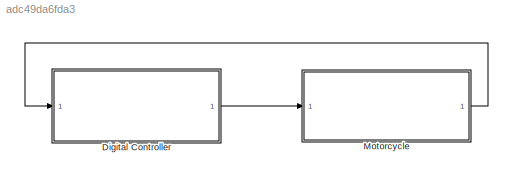
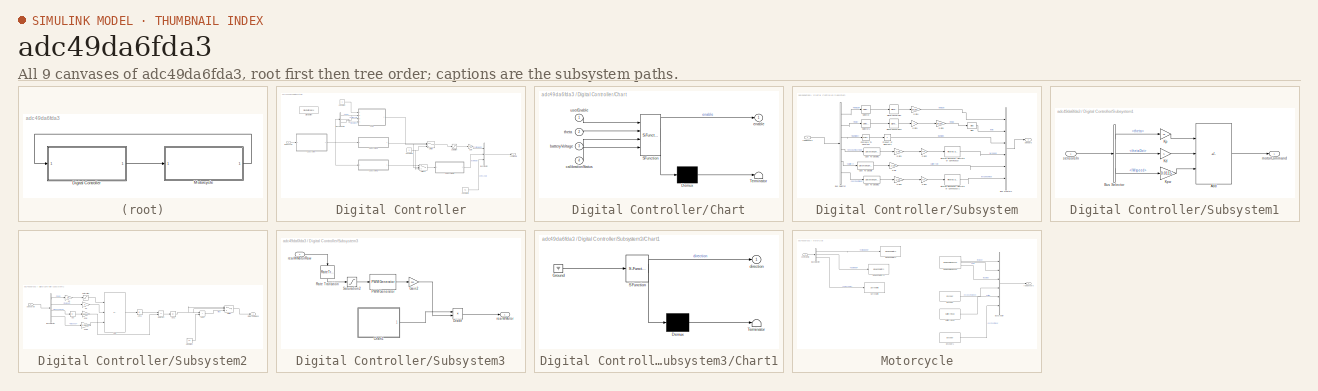
[diagram: thumbnail index - all 9 canvases of the model, root first then tree order]
MODEL slx_adc49da6fda3
KIND model
CONFIG AbsTol = auto
CONFIG EnableMultiTasking = on
CONFIG FixedStep = auto
CONFIG MaxStep = auto
CONFIG MinStep = auto
CONFIG RelTol = 1e-3
CONFIG SampleTimeConstraint = Unconstrained
CONFIG SolverName = FixedStepAuto
CONFIG StartTime = 0.0
CONFIG StopTime = inf
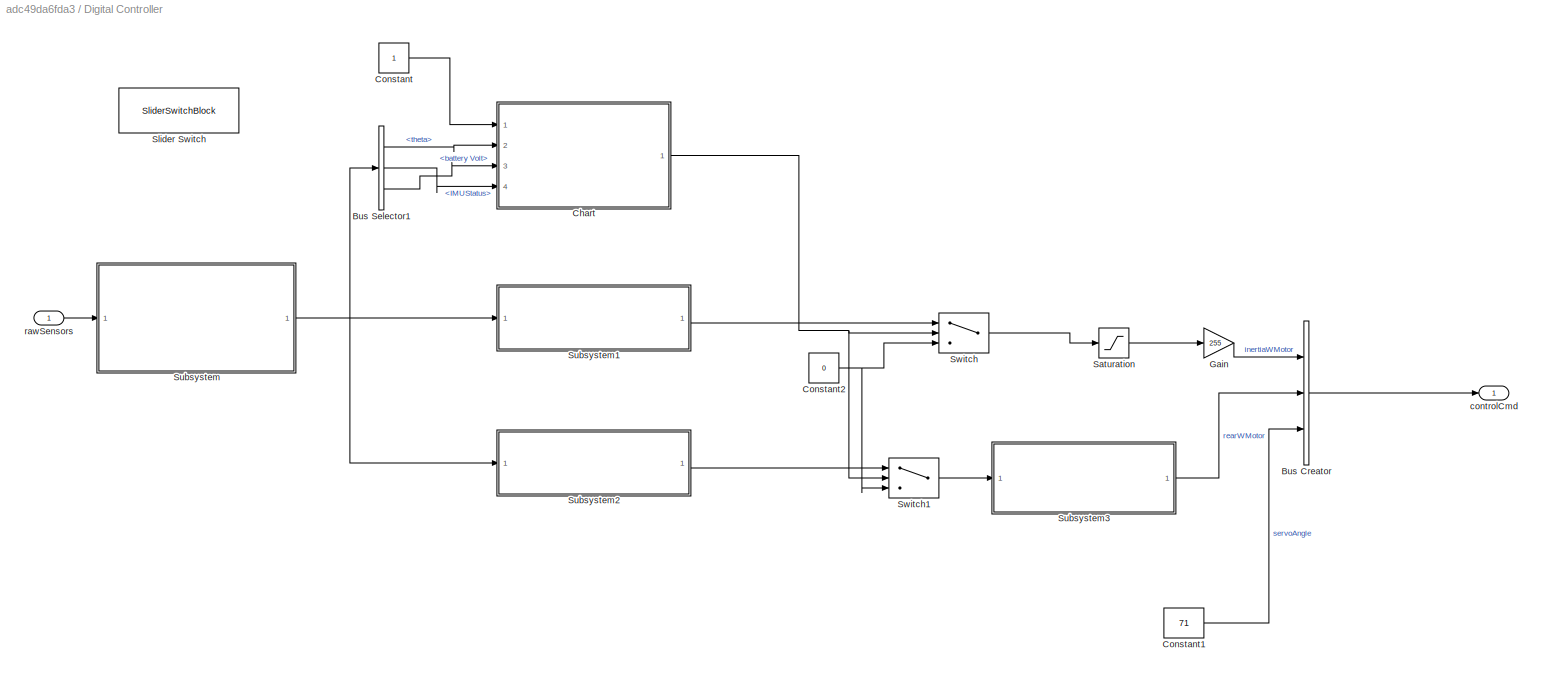
BLOCK [SubSystem] Digital Controller
  Ports = [1, 1]
  RequestExecContextInheritance = off
BLOCK [BusCreator] Digital Controller/Bus Creator
  DisplayOption = bar
  InheritFromInputs = on
  Inputs = 3
  Ports = [3, 1]
BLOCK [BusSelector] Digital Controller/Bus Selector1
  OutputSignals = theta,IMUStatus,battery Volt
  Ports = [1, 3]
BLOCK [SubSystem] Digital Controller/Chart
  ErrorFcn = Stateflow.Translate.translate
  PermitHierarchicalResolution = ExplicitOnly
  Ports = [4, 1]
  RequestExecContextInheritance = off
  SFBlockType = Chart
  TreatAsAtomicUnit = on
BLOCK [Demux] Digital Controller/Chart/ Demux 
  Outputs = 1
  Ports = [1, 1]
BLOCK [S-Function] Digital Controller/Chart/ SFunction 
  EnableBusSupport = on
  FunctionName = sf_sfun
  PortCounts = [4 2]
  Ports = [4, 2]
  SFcnIsStateOwnerBlock = off
  SFunctionDeploymentMode = off
  Tag = Stateflow S-Function 3
BLOCK [Terminator] Digital Controller/Chart/ Terminator 
BLOCK [Inport] Digital Controller/Chart/batteryVoltage
  Port = 3
BLOCK [Inport] Digital Controller/Chart/calibrationStatus
  Port = 4
BLOCK [Outport] Digital Controller/Chart/enable
BLOCK [Inport] Digital Controller/Chart/theta
  Port = 2
BLOCK [Inport] Digital Controller/Chart/userEnable
BLOCK [Constant] Digital Controller/Constant
BLOCK [Constant] Digital Controller/Constant1
  SampleTime = 0.01
  Value = 71
BLOCK [Constant] Digital Controller/Constant2
  SampleTime = 0.01
  Value = 0
BLOCK [Gain] Digital Controller/Gain
  Gain = 255
BLOCK [Saturate] Digital Controller/Saturation
  LowerLimit = -1
  UpperLimit = 1
BLOCK [SliderSwitchBlock] Digital Controller/Slider Switch
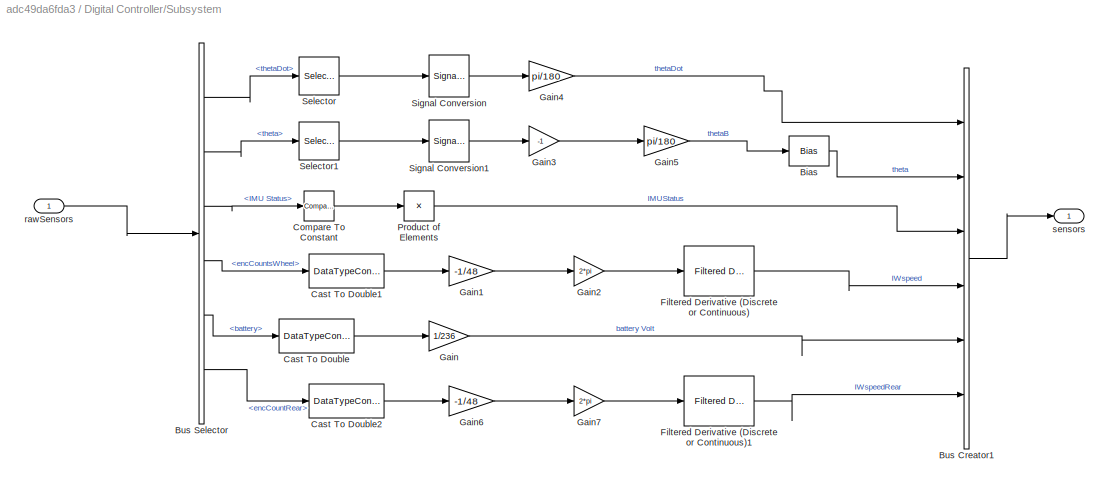
BLOCK [SubSystem] Digital Controller/Subsystem
  Ports = [1, 1]
  RequestExecContextInheritance = off
BLOCK [Bias] Digital Controller/Subsystem/Bias
  SaturateOnIntegerOverflow = off
BLOCK [BusCreator] Digital Controller/Subsystem/Bus Creator1
  DisplayOption = bar
  InheritFromInputs = on
  Inputs = 6
  Ports = [6, 1]
BLOCK [BusSelector] Digital Controller/Subsystem/Bus Selector
  OutputSignals = thetaDot,theta,IMU Status,encCountsWheel,battery,encCountRear
  Ports = [1, 6]
BLOCK [DataTypeConversion] Digital Controller/Subsystem/Cast To Double
  OutDataTypeStr = double
  RndMeth = Floor
  SaturateOnIntegerOverflow = off
BLOCK [DataTypeConversion] Digital Controller/Subsystem/Cast To Double1
  OutDataTypeStr = double
  RndMeth = Floor
  SaturateOnIntegerOverflow = off
BLOCK [DataTypeConversion] Digital Controller/Subsystem/Cast To Double2
  OutDataTypeStr = double
  RndMeth = Floor
  SaturateOnIntegerOverflow = off
BLOCK [Reference] Digital Controller/Subsystem/Compare To Constant  REF=simulink/Logic and Bit
Operations/Compare
To Constant
  Ports = [1, 1]
  SourceBlock = simulink/Logic and Bit\nOperations/Compare\nTo Constant
  SourceProductBaseCode = SL
  SourceType = Compare To Constant
BLOCK [Reference] Digital Controller/Subsystem/Filtered Derivative (Discrete or Continuous)  REF=eeGeneralControl/Filtered Derivative
(Discrete or Continuous)
  Ports = [1, 1]
  SourceBlock = eeGeneralControl/Filtered Derivative\n(Discrete or Continuous)
  SourceProductBaseCode = PS
  SourceType = Filtered Derivative (Discrete or Continuous)
BLOCK [Reference] Digital Controller/Subsystem/Filtered Derivative (Discrete or Continuous)1  REF=eeGeneralControl/Filtered Derivative
(Discrete or Continuous)
  Ports = [1, 1]
  SourceBlock = eeGeneralControl/Filtered Derivative\n(Discrete or Continuous)
  SourceProductBaseCode = PS
  SourceType = Filtered Derivative (Discrete or Continuous)
BLOCK [Gain] Digital Controller/Subsystem/Gain
  Gain = 1/236
BLOCK [Gain] Digital Controller/Subsystem/Gain1
  Gain = -1/48
BLOCK [Gain] Digital Controller/Subsystem/Gain2
  Gain = 2*pi
BLOCK [Gain] Digital Controller/Subsystem/Gain3
  Gain = -1
BLOCK [Gain] Digital Controller/Subsystem/Gain4
  Gain = pi/180
BLOCK [Gain] Digital Controller/Subsystem/Gain5
  Gain = pi/180
BLOCK [Gain] Digital Controller/Subsystem/Gain6
  Gain = -1/48
BLOCK [Gain] Digital Controller/Subsystem/Gain7
  Gain = 2*pi
BLOCK [Product] Digital Controller/Subsystem/Product of Elements
  Inputs = *
  Ports = [1, 1]
BLOCK [Selector] Digital Controller/Subsystem/Selector
  IndexOptions = Index vector (dialog)
  Indices = [2]
  InputPortWidth = 3
  OutputSizes = 1
  Ports = [1, 1]
BLOCK [Selector] Digital Controller/Subsystem/Selector1
  IndexOptions = Index vector (dialog)
  Indices = [2]
  InputPortWidth = 3
  OutputSizes = 1
  Ports = [1, 1]
BLOCK [SignalConversion] Digital Controller/Subsystem/Signal Conversion
  OverrideOpt = off
BLOCK [SignalConversion] Digital Controller/Subsystem/Signal Conversion1
  OverrideOpt = off
BLOCK [Inport] Digital Controller/Subsystem/rawSensors
BLOCK [Outport] Digital Controller/Subsystem/sensors
BLOCK [SubSystem] Digital Controller/Subsystem1
  Ports = [1, 1]
  RequestExecContextInheritance = off
BLOCK [Sum] Digital Controller/Subsystem1/Add
  IconShape = rectangular
  Inputs = ++-
  Ports = [3, 1]
BLOCK [BusSelector] Digital Controller/Subsystem1/Bus Selector
  OutputSignals = theta,thetaDot,IWspeed
  Ports = [1, 3]
BLOCK [Gain] Digital Controller/Subsystem1/Kd
  Gain = 5
BLOCK [Gain] Digital Controller/Subsystem1/Kp
  Gain = 45
BLOCK [Gain] Digital Controller/Subsystem1/Kpw
  Gain = 0.0115
BLOCK [Outport] Digital Controller/Subsystem1/motorCommand
BLOCK [Inport] Digital Controller/Subsystem1/sensorsIn
BLOCK [SubSystem] Digital Controller/Subsystem2
  Ports = [1, 1]
  RequestExecContextInheritance = off
BLOCK [Abs] Digital Controller/Subsystem2/Abs
  SaturateOnIntegerOverflow = off
BLOCK [Abs] Digital Controller/Subsystem2/Abs1
  SaturateOnIntegerOverflow = off
BLOCK [Abs] Digital Controller/Subsystem2/Abs2
  SaturateOnIntegerOverflow = off
BLOCK [Sum] Digital Controller/Subsystem2/Add
  IconShape = rectangular
  Inputs = ++-
  Ports = [3, 1]
BLOCK [Sum] Digital Controller/Subsystem2/Add1
  IconShape = rectangular
  Ports = [2, 1]
BLOCK [BusSelector] Digital Controller/Subsystem2/Bus Selector
  OutputSignals = theta,thetaDot,IWspeedRear,IWspeed
  Ports = [1, 4]
BLOCK [Constant] Digital Controller/Subsystem2/Constant
  SampleTime = 0.01
  Value = 0.2
BLOCK [Gain] Digital Controller/Subsystem2/Kd
BLOCK [Gain] Digital Controller/Subsystem2/Kp
  Gain = 20
BLOCK [Gain] Digital Controller/Subsystem2/Kpw
  Gain = 0.0015
BLOCK [Gain] Digital Controller/Subsystem2/Kpw2
  Gain = 0.00575
BLOCK [Saturate] Digital Controller/Subsystem2/Saturation
  LowerLimit = -3
  UpperLimit = 3
BLOCK [Sum] Digital Controller/Subsystem2/Subtract
  IconShape = rectangular
  Inputs = +-
  Ports = [2, 1]
BLOCK [Switch] Digital Controller/Subsystem2/Switch
  Criteria = u2 > Threshold
  InputSameDT = off
  SaturateOnIntegerOverflow = off
  Threshold = 0.5
BLOCK [Outport] Digital Controller/Subsystem2/motorCommand
BLOCK [Inport] Digital Controller/Subsystem2/sensorsIn
BLOCK [SubSystem] Digital Controller/Subsystem3
  Ports = [1, 1]
  RequestExecContextInheritance = off
BLOCK [SubSystem] Digital Controller/Subsystem3/Chart1
  ErrorFcn = Stateflow.Translate.translate
  PermitHierarchicalResolution = ExplicitOnly
  Ports = [0, 1]
  RequestExecContextInheritance = off
  SFBlockType = Chart
  TreatAsAtomicUnit = on
BLOCK [Demux] Digital Controller/Subsystem3/Chart1/ Demux 
  Outputs = 1
  Ports = [1, 1]
BLOCK [Ground] Digital Controller/Subsystem3/Chart1/ Ground 
BLOCK [S-Function] Digital Controller/Subsystem3/Chart1/ SFunction 
  EnableBusSupport = on
  FunctionName = sf_sfun
  PortCounts = [1 2]
  Ports = [1, 2]
  SFcnIsStateOwnerBlock = off
  SFunctionDeploymentMode = off
  Tag = Stateflow S-Function 2
BLOCK [Terminator] Digital Controller/Subsystem3/Chart1/ Terminator 
BLOCK [Outport] Digital Controller/Subsystem3/Chart1/direction
BLOCK [Product] Digital Controller/Subsystem3/Divide
  Inputs = **
  Ports = [2, 1]
BLOCK [Gain] Digital Controller/Subsystem3/Gain2
  Gain = 255
BLOCK [Reference] Digital Controller/Subsystem3/PWM Generator  REF=eePwmGenerator/PWM Generator
  Ports = [1, 1]
  SourceBlock = eePwmGenerator/PWM Generator
  SourceProductBaseCode = PS
  SourceType = PWM Generator
BLOCK [RateTransition] Digital Controller/Subsystem3/Rate Transition
  NameLocation = left
BLOCK [Saturate] Digital Controller/Subsystem3/Saturation2
  LowerLimit = 0
  UpperLimit = 1
BLOCK [Outport] Digital Controller/Subsystem3/rearWMotor
BLOCK [Inport] Digital Controller/Subsystem3/rearWMotorRaw
BLOCK [Switch] Digital Controller/Switch
  Criteria = u2 > Threshold
  InputSameDT = off
  SaturateOnIntegerOverflow = off
BLOCK [Switch] Digital Controller/Switch1
  Criteria = u2 > Threshold
  InputSameDT = off
  SaturateOnIntegerOverflow = off
BLOCK [Outport] Digital Controller/controlCmd
BLOCK [Inport] Digital Controller/rawSensors
BLOCK [SubSystem] Motorcycle
  Ports = [1, 1]
  RequestExecContextInheritance = off
BLOCK [Reference] Motorcycle/BNO055 IMU Sensor  REF=arduinosensorlib/BNO055 IMU Sensor
  Ports = [0, 3]
  SourceBlock = arduinosensorlib/BNO055 IMU Sensor
  SourceProductBaseCode = ARDUINO
  SourceType = Arduino BNO055
BLOCK [Reference] Motorcycle/Battery Read  REF=arduinomotorcarrierlib/Battery Read
  Ports = [0, 1]
  SourceBlock = arduinomotorcarrierlib/Battery Read
  SourceProductBaseCode = ARDUINO
  SourceType = motorcarrier.blocks.mkrmotorcarrier_Battery
BLOCK [BusCreator] Motorcycle/Bus Creator
  DisplayOption = bar
  InheritFromInputs = on
  Inputs = 6
  Ports = [6, 1]
BLOCK [BusSelector] Motorcycle/Bus Selector
  OutputSignals = inertiaWMotor,rearWMotor,servoAngle
  Ports = [1, 3]
BLOCK [Reference] Motorcycle/Encoder  REF=arduinomotorcarrierlib/Encoder
  Ports = [0, 1]
  SourceBlock = arduinomotorcarrierlib/Encoder
  SourceProductBaseCode = ARDUINO
  SourceType = motorcarrier.blocks.mkrmotorcarrier_Encoder
BLOCK [Reference] Motorcycle/Encoder1  REF=arduinomotorcarrierlib/Encoder
  Ports = [0, 1]
  SourceBlock = arduinomotorcarrierlib/Encoder
  SourceProductBaseCode = ARDUINO
  SourceType = motorcarrier.blocks.mkrmotorcarrier_Encoder
BLOCK [Reference] Motorcycle/M3 M4 DC Motors  REF=arduinomotorcarrierlib/M3 M4 DC Motors
  Ports = [1]
  SourceBlock = arduinomotorcarrierlib/M3 M4 DC Motors
  SourceProductBaseCode = ARDUINO
  SourceType = DC Motor
BLOCK [Reference] Motorcycle/M3 M4 DC Motors1  REF=arduinomotorcarrierlib/M3 M4 DC Motors
  Ports = [1]
  SourceBlock = arduinomotorcarrierlib/M3 M4 DC Motors
  SourceProductBaseCode = ARDUINO
  SourceType = DC Motor
BLOCK [Reference] Motorcycle/Servo Write  REF=arduinomotorcarrierlib/Servo Write
  Ports = [1]
  SourceBlock = arduinomotorcarrierlib/Servo Write
  SourceProductBaseCode = ARDUINO
  SourceType = MKR Servo Motor
BLOCK [Inport] Motorcycle/controlCmd
BLOCK [Outport] Motorcycle/rawSensors
LINE Digital Controller/Bus Creator:1 -> Digital Controller/controlCmd:1
LINE Digital Controller/Bus Selector1:1 -> Digital Controller/Chart:2
LINE Digital Controller/Bus Selector1:2 -> Digital Controller/Chart:4
LINE Digital Controller/Bus Selector1:3 -> Digital Controller/Chart:3
NET Digital Controller/Chart:1 -> Digital Controller/Switch1:2, Digital Controller/Switch:2
LINE Digital Controller/Constant1:1 -> Digital Controller/Bus Creator:3
NET Digital Controller/Constant2:1 -> Digital Controller/Switch1:3, Digital Controller/Switch:3
LINE Digital Controller/Constant:1 -> Digital Controller/Chart:1
LINE Digital Controller/Gain:1 -> Digital Controller/Bus Creator:1
LINE Digital Controller/Saturation:1 -> Digital Controller/Gain:1
LINE Digital Controller/Subsystem/Bias:1 -> Digital Controller/Subsystem/Bus Creator1:2
LINE Digital Controller/Subsystem/Bus Creator1:1 -> Digital Controller/Subsystem/sensors:1
LINE Digital Controller/Subsystem/Bus Selector:1 -> Digital Controller/Subsystem/Selector:1
LINE Digital Controller/Subsystem/Bus Selector:2 -> Digital Controller/Subsystem/Selector1:1
LINE Digital Controller/Subsystem/Bus Selector:3 -> Digital Controller/Subsystem/Compare To Constant:1
LINE Digital Controller/Subsystem/Bus Selector:4 -> Digital Controller/Subsystem/Cast To Double1:1
LINE Digital Controller/Subsystem/Bus Selector:5 -> Digital Controller/Subsystem/Cast To Double:1
LINE Digital Controller/Subsystem/Bus Selector:6 -> Digital Controller/Subsystem/Cast To Double2:1
LINE Digital Controller/Subsystem/Cast To Double1:1 -> Digital Controller/Subsystem/Gain1:1
LINE Digital Controller/Subsystem/Cast To Double2:1 -> Digital Controller/Subsystem/Gain6:1
LINE Digital Controller/Subsystem/Cast To Double:1 -> Digital Controller/Subsystem/Gain:1
LINE Digital Controller/Subsystem/Compare To Constant:1 -> Digital Controller/Subsystem/Product of Elements:1
LINE Digital Controller/Subsystem/Filtered Derivative (Discrete or Continuous)1:1 -> Digital Controller/Subsystem/Bus Creator1:6
LINE Digital Controller/Subsystem/Filtered Derivative (Discrete or Continuous):1 -> Digital Controller/Subsystem/Bus Creator1:4
LINE Digital Controller/Subsystem/Gain1:1 -> Digital Controller/Subsystem/Gain2:1
LINE Digital Controller/Subsystem/Gain2:1 -> Digital Controller/Subsystem/Filtered Derivative (Discrete or Continuous):1
LINE Digital Controller/Subsystem/Gain3:1 -> Digital Controller/Subsystem/Gain5:1
LINE Digital Controller/Subsystem/Gain4:1 -> Digital Controller/Subsystem/Bus Creator1:1
LINE Digital Controller/Subsystem/Gain5:1 -> Digital Controller/Subsystem/Bias:1
LINE Digital Controller/Subsystem/Gain6:1 -> Digital Controller/Subsystem/Gain7:1
LINE Digital Controller/Subsystem/Gain7:1 -> Digital Controller/Subsystem/Filtered Derivative (Discrete or Continuous)1:1
LINE Digital Controller/Subsystem/Gain:1 -> Digital Controller/Subsystem/Bus Creator1:5
LINE Digital Controller/Subsystem/Product of Elements:1 -> Digital Controller/Subsystem/Bus Creator1:3
LINE Digital Controller/Subsystem/Selector1:1 -> Digital Controller/Subsystem/Signal Conversion1:1
LINE Digital Controller/Subsystem/Selector:1 -> Digital Controller/Subsystem/Signal Conversion:1
LINE Digital Controller/Subsystem/Signal Conversion1:1 -> Digital Controller/Subsystem/Gain3:1
LINE Digital Controller/Subsystem/Signal Conversion:1 -> Digital Controller/Subsystem/Gain4:1
LINE Digital Controller/Subsystem/rawSensors:1 -> Digital Controller/Subsystem/Bus Selector:1
LINE Digital Controller/Subsystem1/Add:1 -> Digital Controller/Subsystem1/motorCommand:1
LINE Digital Controller/Subsystem1/Bus Selector:1 -> Digital Controller/Subsystem1/Kp:1
LINE Digital Controller/Subsystem1/Bus Selector:2 -> Digital Controller/Subsystem1/Kd:1
LINE Digital Controller/Subsystem1/Bus Selector:3 -> Digital Controller/Subsystem1/Kpw:1
LINE Digital Controller/Subsystem1/Kd:1 -> Digital Controller/Subsystem1/Add:2
LINE Digital Controller/Subsystem1/Kp:1 -> Digital Controller/Subsystem1/Add:1
LINE Digital Controller/Subsystem1/Kpw:1 -> Digital Controller/Subsystem1/Add:3
LINE Digital Controller/Subsystem1/sensorsIn:1 -> Digital Controller/Subsystem1/Bus Selector:1
LINE Digital Controller/Subsystem1:1 -> Digital Controller/Switch:1
LINE Digital Controller/Subsystem2/Abs1:1 -> Digital Controller/Subsystem2/Subtract:1
NET Digital Controller/Subsystem2/Abs2:1 -> Digital Controller/Subsystem2/Add1:1, Digital Controller/Subsystem2/Switch:1, Digital Controller/Subsystem2/Switch:2
LINE Digital Controller/Subsystem2/Abs:1 -> Digital Controller/Subsystem2/Kpw:1
LINE Digital Controller/Subsystem2/Add1:1 -> Digital Controller/Subsystem2/Switch:3
LINE Digital Controller/Subsystem2/Add:1 -> Digital Controller/Subsystem2/Abs1:1
LINE Digital Controller/Subsystem2/Bus Selector:1 -> Digital Controller/Subsystem2/Kp:1
LINE Digital Controller/Subsystem2/Bus Selector:2 -> Digital Controller/Subsystem2/Kd:1
LINE Digital Controller/Subsystem2/Bus Selector:3 -> Digital Controller/Subsystem2/Abs:1
LINE Digital Controller/Subsystem2/Bus Selector:4 -> Digital Controller/Subsystem2/Kpw2:1
LINE Digital Controller/Subsystem2/Constant:1 -> Digital Controller/Subsystem2/Add1:2
LINE Digital Controller/Subsystem2/Kd:1 -> Digital Controller/Subsystem2/Add:2
LINE Digital Controller/Subsystem2/Kp:1 -> Digital Controller/Subsystem2/Saturation:1
LINE Digital Controller/Subsystem2/Kpw2:1 -> Digital Controller/Subsystem2/Add:3
LINE Digital Controller/Subsystem2/Kpw:1 -> Digital Controller/Subsystem2/Subtract:2
LINE Digital Controller/Subsystem2/Saturation:1 -> Digital Controller/Subsystem2/Add:1
LINE Digital Controller/Subsystem2/Subtract:1 -> Digital Controller/Subsystem2/Abs2:1
LINE Digital Controller/Subsystem2/Switch:1 -> Digital Controller/Subsystem2/motorCommand:1
LINE Digital Controller/Subsystem2/sensorsIn:1 -> Digital Controller/Subsystem2/Bus Selector:1
LINE Digital Controller/Subsystem2:1 -> Digital Controller/Switch1:1
LINE Digital Controller/Subsystem3/Chart1:1 -> Digital Controller/Subsystem3/Divide:1
LINE Digital Controller/Subsystem3/Divide:1 -> Digital Controller/Subsystem3/rearWMotor:1
LINE Digital Controller/Subsystem3/Gain2:1 -> Digital Controller/Subsystem3/Divide:2
LINE Digital Controller/Subsystem3/PWM Generator:1 -> Digital Controller/Subsystem3/Gain2:1
LINE Digital Controller/Subsystem3/Rate Transition:1 -> Digital Controller/Subsystem3/Saturation2:1
LINE Digital Controller/Subsystem3/Saturation2:1 -> Digital Controller/Subsystem3/PWM Generator:1
LINE Digital Controller/Subsystem3/rearWMotorRaw:1 -> Digital Controller/Subsystem3/Rate Transition:1
LINE Digital Controller/Subsystem3:1 -> Digital Controller/Bus Creator:2
NET Digital Controller/Subsystem:1 -> Digital Controller/Bus Selector1:1, Digital Controller/Subsystem1:1, Digital Controller/Subsystem2:1
LINE Digital Controller/Switch1:1 -> Digital Controller/Subsystem3:1
LINE Digital Controller/Switch:1 -> Digital Controller/Saturation:1
LINE Digital Controller/rawSensors:1 -> Digital Controller/Subsystem:1
LINE Digital Controller:1 -> Motorcycle:1
LINE Motorcycle/BNO055 IMU Sensor:1 -> Motorcycle/Bus Creator:1
LINE Motorcycle/BNO055 IMU Sensor:2 -> Motorcycle/Bus Creator:2
LINE Motorcycle/BNO055 IMU Sensor:3 -> Motorcycle/Bus Creator:3
LINE Motorcycle/Battery Read:1 -> Motorcycle/Bus Creator:5
LINE Motorcycle/Bus Creator:1 -> Motorcycle/rawSensors:1
LINE Motorcycle/Bus Selector:1 -> Motorcycle/M3 M4 DC Motors:1
LINE Motorcycle/Bus Selector:2 -> Motorcycle/M3 M4 DC Motors1:1
LINE Motorcycle/Bus Selector:3 -> Motorcycle/Servo Write:1
LINE Motorcycle/Encoder1:1 -> Motorcycle/Bus Creator:6
LINE Motorcycle/Encoder:1 -> Motorcycle/Bus Creator:4
LINE Motorcycle/controlCmd:1 -> Motorcycle/Bus Selector:1
LINE Motorcycle:1 -> Digital Controller:1
note: NET lines group one-source signal fan-out (src -> all destinations, sorted); 1:1 wires keep LINE
CHART Digital Controller/Subsystem3/Chart1 states=4 transitions=5
  STATE_LABEL 'out8\nentry: direction = 1;'
  STATE_LABEL 'out5\nentry: direction = 0;'
  STATE_LABEL 'out7\nentry: direction = 0;'
  STATE_LABEL 'out6\nentry: direction = -1;'
CHART Digital Controller/Chart states=12 transitions=11
  STATE_LABEL 'checkFallen'
  STATE_LABEL 'Fallen\nentry: upright = false;'
  STATE_LABEL 'Standing\nentry: upright = true;'
  STATE_LABEL '[abs(theta)<pi*12/180]'
  STATE_LABEL '[abs(theta) > pi*12/180]'
  STATE_LABEL 'Fallen\nentry: upright = false;'
  STATE_LABEL 'Standing\nentry: upright = true;'
  STATE_LABEL 'checkIMUCalib'
  STATE_LABEL 'imuNotCalibrated\nentry:\nIMUCalibrated = false;'
  STATE_LABEL 'imuCalibrated\nentry:\nIMUCalibrated = true;'
  STATE_LABEL '[calibrationStatus == true]'
  STATE_LABEL 'imuNotCalibrated\nentry:\nIMUCalibrated = false;'
  STATE_LABEL 'imuCalibrated\nentry:\nIMUCalibrated = true;'
  STATE_LABEL 'checkBattery'
  STATE_LABEL 'batteryNotCharged\nentry:\nbatteryOK = false;'
  STATE_LABEL 'batteryCharged\nentry:\nbatteryOK = true;'
  STATE_LABEL '[batteryVoltage > 3]'
  STATE_LABEL '[batteryVoltage <= 3]'
  STATE_LABEL 'batteryNotCharged\nentry:\nbatteryOK = false;'
  STATE_LABEL 'batteryCharged\nentry:\nbatteryOK = true;'
  STATE_LABEL 'calculateEnable'
  STATE_LABEL 'disableControl\nentry:\nenable = false'
  STATE_LABEL 'enableControl\nentry:\nenable = true'
  STATE_LABEL '[userEnable && batteryOK && IMUCalibrated && upright]'
  STATE_LABEL '[not(userEnable) || not(batteryOK) || not(IMUCalibrated) || not(upright)]'
  STATE_LABEL 'disableControl\nentry:\nenable = false'
  STATE_LABEL 'enableControl\nentry:\nenable = true'
CHART  states=0 transitions=0
CHART  states=0 transitions=0
